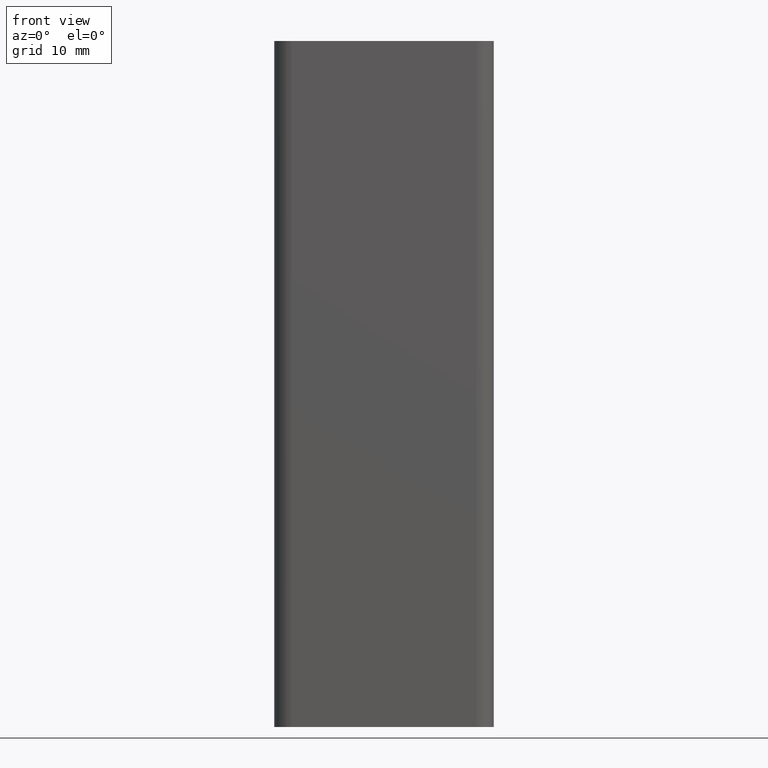
[diagram: clean part render]
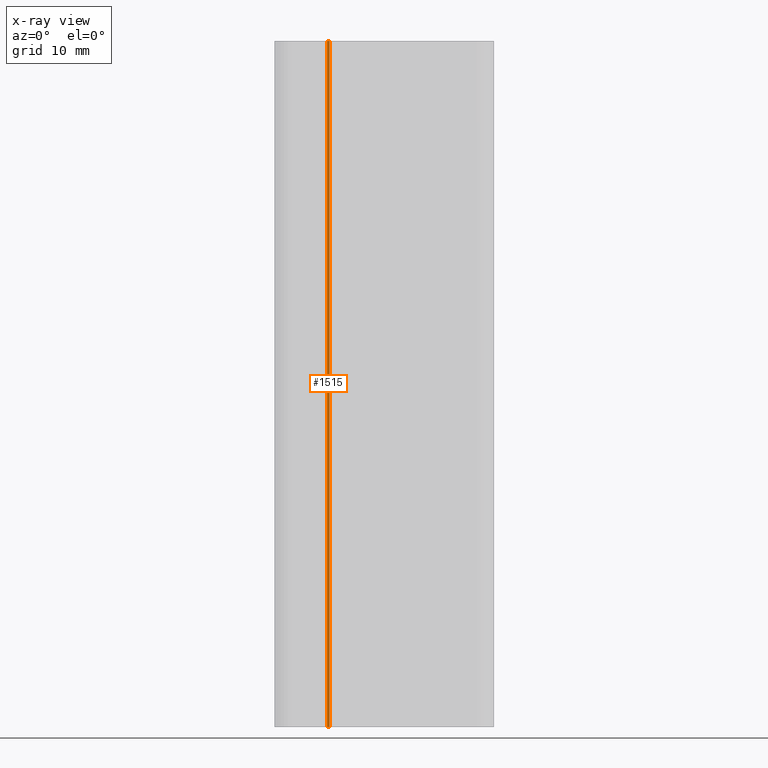
[diagram: x-ray — body ghosted, one internal face saturated and labeled with its STEP entity id]
A machine part, front view, then the same camera in x-ray: the body is ghosted and one INTERNAL B-rep face — a face not visible from any outside direction — is saturated and labeled: STEP entity #1515.
In plain terms, the highlighted cylindrical surface (edge-blend (fillet) strip) has radius 0.3 mm, axis along (0, 0, 1).
Its self-contained STEP definition (entity closure, byte-faithful):
#31=CIRCLE('',#1612,0.3);
#32=CIRCLE('',#1613,0.3);
#108=CYLINDRICAL_SURFACE('',#1611,0.3);
#157=FACE_OUTER_BOUND('',#237,.T.);
#237=EDGE_LOOP('',(#1051,#1052,#1053,#1054));
#333=LINE('',#2316,#483);
#335=LINE('',#2322,#485);
#483=VECTOR('',#1833,100.);
#485=VECTOR('',#1839,100.);
#635=VERTEX_POINT('',#2313);
#636=VERTEX_POINT('',#2315);
#637=VERTEX_POINT('',#2319);
#638=VERTEX_POINT('',#2321);
#803=EDGE_CURVE('',#636,#635,#333,.T.);
#805=EDGE_CURVE('',#637,#635,#31,.T.);
#806=EDGE_CURVE('',#638,#637,#335,.T.);
#807=EDGE_CURVE('',#636,#638,#32,.T.);
#1051=ORIENTED_EDGE('',*,*,#805,.F.);
#1052=ORIENTED_EDGE('',*,*,#806,.F.);
#1053=ORIENTED_EDGE('',*,*,#807,.F.);
#1054=ORIENTED_EDGE('',*,*,#803,.T.);
#1515=ADVANCED_FACE('',(#157),#108,.T.);
#1611=AXIS2_PLACEMENT_3D('',#2318,#1835,#1836);
#1612=AXIS2_PLACEMENT_3D('',#2320,#1837,#1838);
#1613=AXIS2_PLACEMENT_3D('',#2323,#1840,#1841);
#1833=DIRECTION('',(0.,0.,1.));
#1835=DIRECTION('center_axis',(0.,0.,1.));
#1836=DIRECTION('ref_axis',(-0.402679236738643,-0.915341156236069,0.));
#1837=DIRECTION('center_axis',(0.,0.,1.));
#1838=DIRECTION('ref_axis',(-0.402679236738643,-0.915341156236069,0.));
#1839=DIRECTION('',(0.,0.,1.));
#1840=DIRECTION('center_axis',(0.,0.,-1.));
#1841=DIRECTION('ref_axis',(-0.402679236738643,-0.915341156236069,0.));
#2313=CARTESIAN_POINT('',(-1.83025661470289,-3.41983045785605,100.));
#2315=CARTESIAN_POINT('',(-1.83025661470289,-3.41983045785605,0.));
#2316=CARTESIAN_POINT('',(-1.83025661470289,-3.41983045785605,0.));
#2318=CARTESIAN_POINT('Origin',(-1.57044902327825,-3.56983050931648,0.));
#2319=CARTESIAN_POINT('',(-1.44964525225666,-3.29522816244566,100.));
#2320=CARTESIAN_POINT('Origin',(-1.57044902327825,-3.56983050931648,100.));
#2321=CARTESIAN_POINT('',(-1.44964525225666,-3.29522816244566,0.));
#2322=CARTESIAN_POINT('',(-1.4496452522567,-3.29522816244564,0.));
#2323=CARTESIAN_POINT('Origin',(-1.57044902327825,-3.56983050931648,0.));